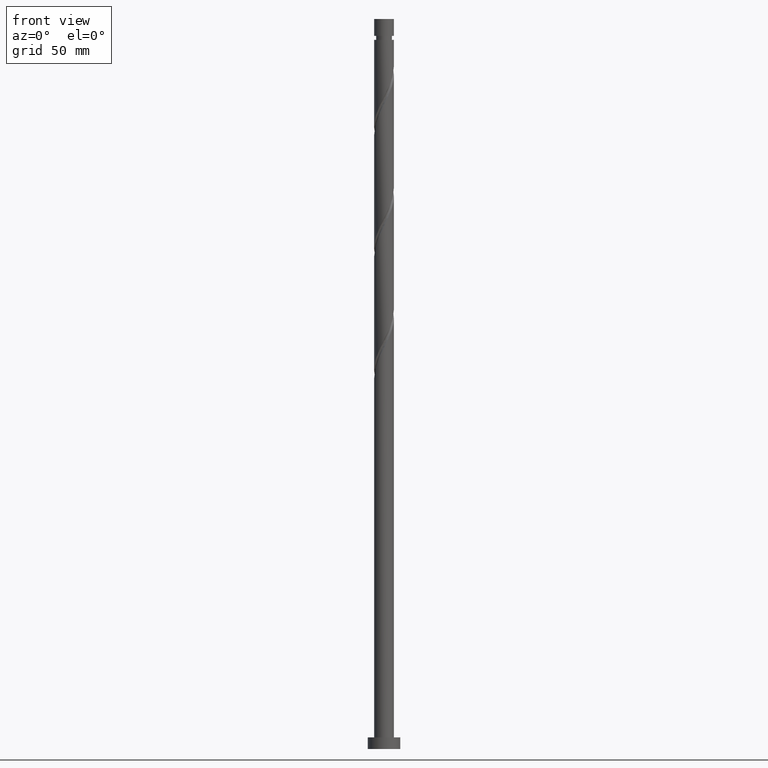
[diagram: clean part render]
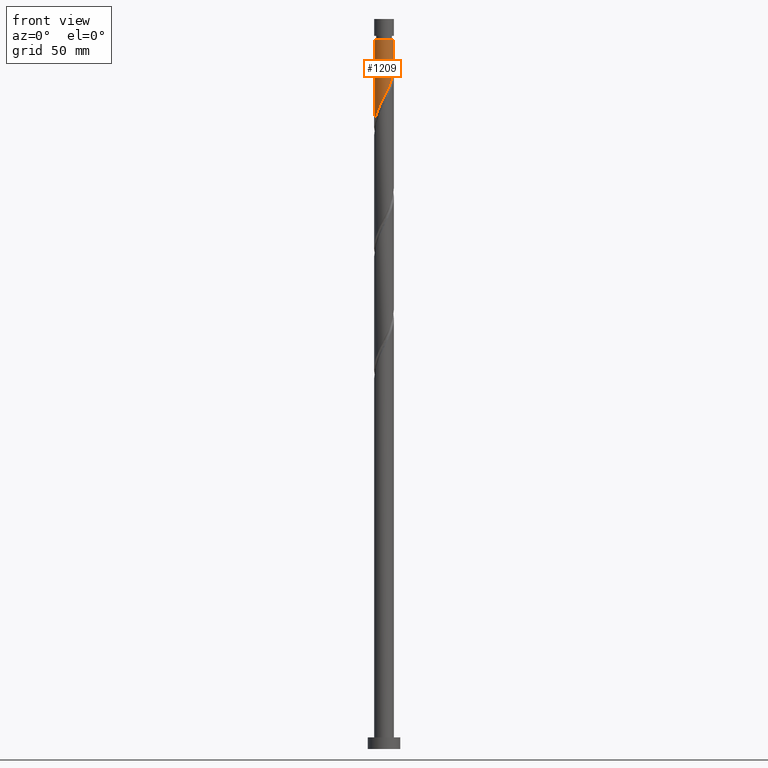
[diagram: same view with one face highlighted and labeled with its STEP entity id]
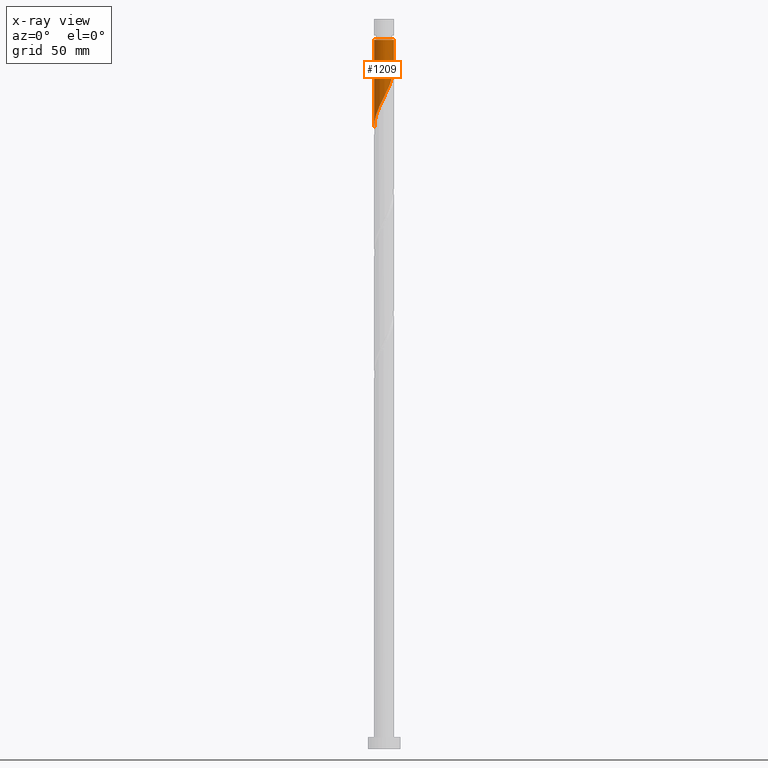
[diagram: x-ray of the same camera — body ghosted, the highlighted face saturated]
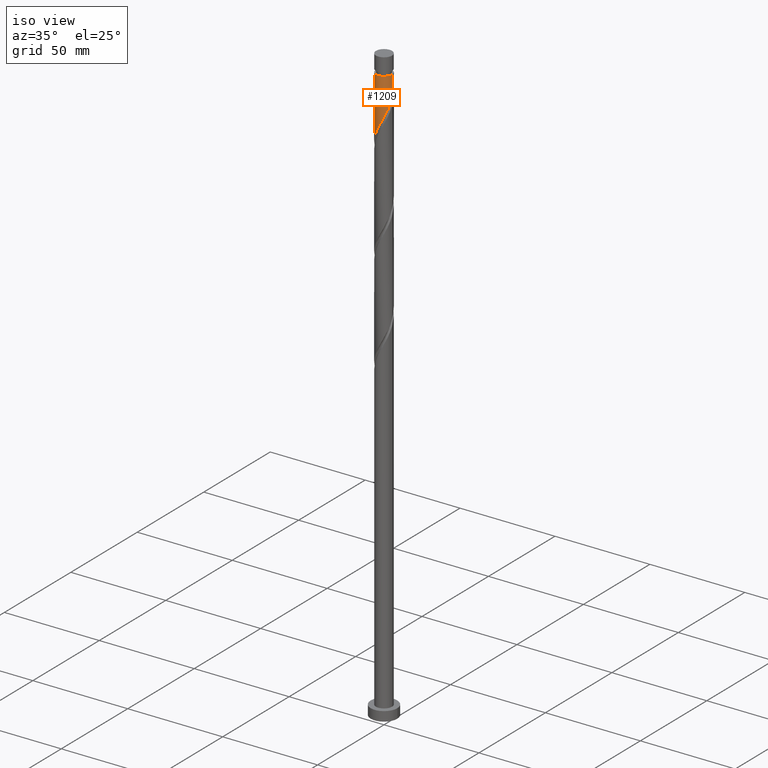
[diagram: same view with one face highlighted and labeled with its STEP entity id]
A machine part, front view. The second image highlights one B-rep face of the part: STEP entity #1209.
The next image is the same camera in x-ray: the body ghosted, the highlighted face saturated — about 0% of this face is hidden behind the body in this view.
A second angle (iso view) of the same face is appended — the face is thin or edge-on in the first view.
In plain terms, the highlighted cylindrical surface (edge-blend (fillet) strip) has radius 4.25 mm, axis along (-0, -0, -1).
Its self-contained STEP definition (entity closure, byte-faithful):
#7 = CARTESIAN_POINT ( 'NONE',  ( 1.509295783997805840, -4.001728767771656869, 284.4312838819315061 ) ) ;
#37 = CARTESIAN_POINT ( 'NONE',  ( 2.729018282467836176, -3.258060652283240710, 287.2437838819314493 ) ) ;
#46 = CARTESIAN_POINT ( 'NONE',  ( 2.361923010402209755, -3.565547165210043445, 286.3062838819313924 ) ) ;
#93 = CARTESIAN_POINT ( 'NONE',  ( 4.164999999999997371, -0.8457393215406302511, 292.8687838819316198 ) ) ;
#103 = CARTESIAN_POINT ( 'NONE',  ( 3.675052036796095045, -2.187647005630862562, 290.0562838819315061 ) ) ;
#114 = DIRECTION ( 'NONE',  ( -0.000000000000000000, -0.000000000000000000, -1.000000000000000000 ) ) ;
#159 = CARTESIAN_POINT ( 'NONE',  ( 4.250000000000000000, 5.204748896376250699E-16, 315.0000000000000000 ) ) ;
#163 = CARTESIAN_POINT ( 'NONE',  ( 0.5809861647134089147, -4.237246980153082099, 282.5562838819315061 ) ) ;
#174 = CARTESIAN_POINT ( 'NONE',  ( -4.001728767771656869, -1.509295783997805840, 271.3062838819314493 ) ) ;
#191 = EDGE_CURVE ( 'NONE', #1184, #299, #785, .T. ) ;
#202 = ORIENTED_EDGE ( 'NONE', *, *, #995, .T. ) ;
#242 = CARTESIAN_POINT ( 'NONE',  ( -2.569110572493650047, -3.385582795664778821, 275.9937838819314493 ) ) ;
#299 = VERTEX_POINT ( 'NONE', #709 ) ;
#310 = CYLINDRICAL_SURFACE ( 'NONE', #1637, 4.250000000000000000 ) ;
#338 = CARTESIAN_POINT ( 'NONE',  ( -4.119487873962370372, -1.045140974355607932, 270.3687838819315061 ) ) ;
#378 = CARTESIAN_POINT ( 'NONE',  ( 4.249999999999995559, -0.4271410714851768264, 293.7050298808740081 ) ) ;
#419 = VERTEX_POINT ( 'NONE', #1451 ) ;
#521 = CARTESIAN_POINT ( 'NONE',  ( 3.096113554533461265, -2.950574139356437531, 288.1812838819315630 ) ) ;
#532 = DIRECTION ( 'NONE',  ( -1.000000000000000000, 0.000000000000000000, 0.000000000000000000 ) ) ;
#599 = DIRECTION ( 'NONE',  ( -1.000000000000000000, 0.000000000000000000, 0.000000000000000000 ) ) ;
#615 = CARTESIAN_POINT ( 'NONE',  ( 1.045140974355607710, -4.119487873962370372, 283.4937838819314493 ) ) ;
#623 = EDGE_CURVE ( 'NONE', #419, #1184, #1806, .T. ) ;
#627 = CARTESIAN_POINT ( 'NONE',  ( -0.3764565268566676393, -4.260291935747106074, 280.6812838819315061 ) ) ;
#681 = CARTESIAN_POINT ( 'NONE',  ( 3.872380050524492301, -1.751334560927727990, 290.9937838819315061 ) ) ;
#690 = CARTESIAN_POINT ( 'NONE',  ( -3.258060652283240266, -2.729018282467836176, 274.1187838819315061 ) ) ;
#696 = CARTESIAN_POINT ( 'NONE',  ( -4.249999999999974243, 0.000000000000000000, 305.9937838819315061 ) ) ;
#707 = DIRECTION ( 'NONE',  ( -0.000000000000000000, -0.000000000000000000, -1.000000000000000000 ) ) ;
#709 = CARTESIAN_POINT ( 'NONE',  ( -4.249999999999999112, 1.865721690190771381E-15, 268.2933009598375520 ) ) ;
#721 = CARTESIAN_POINT ( 'NONE',  ( -4.250000000000000000, 0.000000000000000000, 315.0000000000000000 ) ) ;
#726 = VECTOR ( 'NONE', #1165, 1000.000000000000000 ) ;
#749 = CARTESIAN_POINT ( 'NONE',  ( 0.1022648189283707904, -4.248769457950094086, 281.6187838819316767 ) ) ;
#754 = CARTESIAN_POINT ( 'NONE',  ( 4.249999999999998224, -2.388123763444187572E-15, 294.5433009598375520 ) ) ;
#762 = CARTESIAN_POINT ( 'NONE',  ( -4.248769457950094974, -0.1022648189283709985, 268.4937838819315061 ) ) ;
#780 = CARTESIAN_POINT ( 'NONE',  ( -4.249999999999999112, 1.865721690190771381E-15, 268.2933009598375520 ) ) ;
#785 =( BOUNDED_CURVE ( )  B_SPLINE_CURVE ( 2, ( #1149, #378, #93, #1140, #681, #103, #1286, #521, #37, #46, #1122, #7, #615, #163, #749, #627, #1222, #1548, #936, #1410, #242, #837, #690, #1643, #892, #174, #338, #1521, #762, #1633, #780 ),
 .UNSPECIFIED., .F., .T. ) 
 B_SPLINE_CURVE_WITH_KNOTS ( ( 3, 2, 2, 2, 2, 2, 2, 2, 2, 2, 2, 2, 2, 2, 2, 3 ),
 ( 0.3045303401299221946, 0.3125000000000000000, 0.3214285714285714524, 0.3303571428571428492, 0.3392857142857143016, 0.3482142857142856984, 0.3571428571428571508, 0.3660714285714285476, 0.3750000000000000000, 0.3839285714285714524, 0.3928571428571428492, 0.4017857142857143016, 0.4107142857142856984, 0.4196428571428571508, 0.4285714285714285476, 0.4295303401299219725 ),
 .UNSPECIFIED. ) 
 CURVE ( )  GEOMETRIC_REPRESENTATION_ITEM ( )  RATIONAL_B_SPLINE_CURVE ( ( 0.9079949616362024134, 0.9039886423360659062, 0.9090909090909324863, 0.9033747362666074698, 0.9090909090909324863, 0.9033747362666074698, 0.9090909090909324863, 0.9033747362666074698, 0.9090909090909324863, 0.9033747362666074698, 0.9090909090909324863, 0.9033747362666074698, 0.9090909090909324863, 0.9033747362666074698, 0.9090909090909324863, 0.9033747362666074698, 0.9090909090909324863, 0.9033747362666074698, 0.9090909090909324863, 0.9033747362666074698, 0.9090909090909324863, 0.9033747362666074698, 0.9090909090909324863, 0.9033747362666074698, 0.9090909090909324863, 0.9033747362666074698, 0.9090909090909324863, 0.9033747362666074698, 0.9090909090909324863, 0.9084770030214742720, 0.9079949616362026354 ) ) 
 REPRESENTATION_ITEM ( '' )  );
#837 = CARTESIAN_POINT ( 'NONE',  ( -2.950574139356437531, -3.096113554533461265, 275.0562838819315630 ) ) ;
#892 = CARTESIAN_POINT ( 'NONE',  ( -3.783637966490850157, -1.935609397200007686, 272.2437838819315061 ) ) ;
#936 = CARTESIAN_POINT ( 'NONE',  ( -1.751334560927727324, -3.872380050524492301, 277.8687838819315061 ) ) ;
#967 = VERTEX_POINT ( 'NONE', #696 ) ;
#995 = EDGE_CURVE ( 'NONE', #419, #967, #1012, .T. ) ;
#1012 = CIRCLE ( 'NONE', #1509, 4.249999999999974243 ) ;
#1122 = CARTESIAN_POINT ( 'NONE',  ( 1.935609397200007242, -3.783637966490850157, 285.3687838819315061 ) ) ;
#1140 = CARTESIAN_POINT ( 'NONE',  ( 4.069708064252891333, -1.315022116224592530, 291.9312838819314493 ) ) ;
#1149 = CARTESIAN_POINT ( 'NONE',  ( 4.249999999999998224, -2.388123763444187572E-15, 294.5433009598375520 ) ) ;
#1165 = DIRECTION ( 'NONE',  ( -0.000000000000000000, -0.000000000000000000, -1.000000000000000000 ) ) ;
#1184 = VERTEX_POINT ( 'NONE', #754 ) ;
#1209 = ADVANCED_FACE ( 'NONE', ( #1465 ), #310, .T. ) ;
#1222 = CARTESIAN_POINT ( 'NONE',  ( -0.8457393215406299181, -4.164999999999997371, 279.7437838819315061 ) ) ;
#1263 = CARTESIAN_POINT ( 'NONE',  ( 0.000000000000000000, 0.000000000000000000, 305.9937838819315061 ) ) ;
#1286 = CARTESIAN_POINT ( 'NONE',  ( 3.385582795664778821, -2.569110572493650047, 289.1187838819314493 ) ) ;
#1319 = ORIENTED_EDGE ( 'NONE', *, *, #1868, .T. ) ;
#1407 = ORIENTED_EDGE ( 'NONE', *, *, #623, .F. ) ;
#1410 = CARTESIAN_POINT ( 'NONE',  ( -2.187647005630862118, -3.675052036796095045, 276.9312838819315061 ) ) ;
#1451 = CARTESIAN_POINT ( 'NONE',  ( 4.249999999999974243, 5.204748896376234922E-16, 305.9937838819315061 ) ) ;
#1465 = FACE_OUTER_BOUND ( 'NONE', #1812, .T. ) ;
#1486 = ORIENTED_EDGE ( 'NONE', *, *, #191, .F. ) ;
#1488 = CARTESIAN_POINT ( 'NONE',  ( 0.000000000000000000, 0.000000000000000000, 315.0000000000000000 ) ) ;
#1509 = AXIS2_PLACEMENT_3D ( 'NONE', #1263, #707, #532 ) ;
#1521 = CARTESIAN_POINT ( 'NONE',  ( -4.237246980153082099, -0.5809861647134091367, 269.4312838819315061 ) ) ;
#1548 = CARTESIAN_POINT ( 'NONE',  ( -1.315022116224592308, -4.069708064252891333, 278.8062838819314493 ) ) ;
#1571 = VECTOR ( 'NONE', #114, 1000.000000000000000 ) ;
#1633 = CARTESIAN_POINT ( 'NONE',  ( -4.249999999999999112, -0.05113981295716024666, 268.3936636480626703 ) ) ;
#1637 = AXIS2_PLACEMENT_3D ( 'NONE', #1488, #1920, #599 ) ;
#1643 = CARTESIAN_POINT ( 'NONE',  ( -3.565547165210043445, -2.361923010402209755, 273.1812838819313924 ) ) ;
#1760 = LINE ( 'NONE', #721, #1571 ) ;
#1806 = LINE ( 'NONE', #159, #726 ) ;
#1812 = EDGE_LOOP ( 'NONE', ( #1407, #202, #1319, #1486 ) ) ;
#1868 = EDGE_CURVE ( 'NONE', #967, #299, #1760, .T. ) ;
#1920 = DIRECTION ( 'NONE',  ( -0.000000000000000000, -0.000000000000000000, -1.000000000000000000 ) ) ;